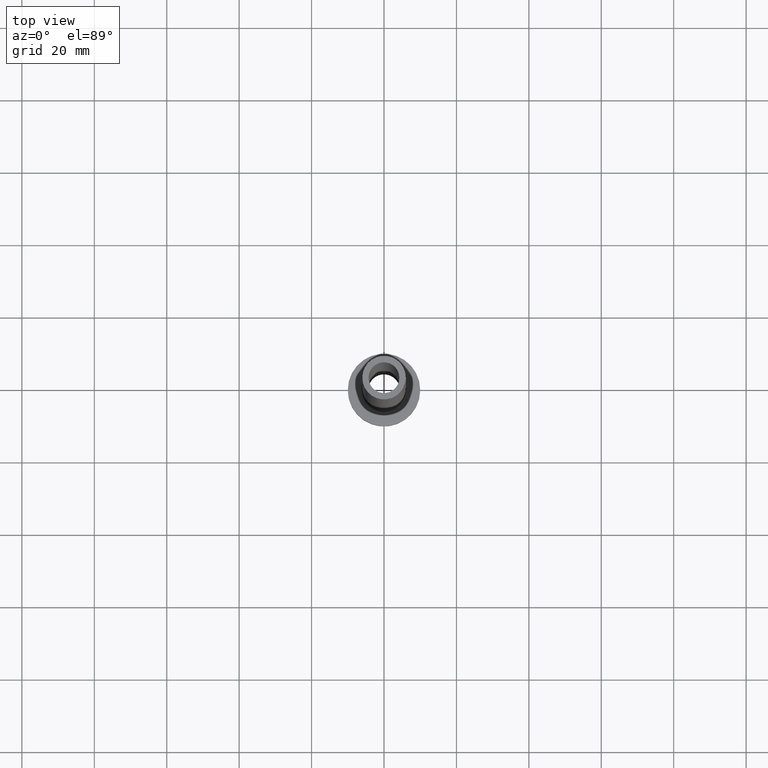
[diagram: clean part render]
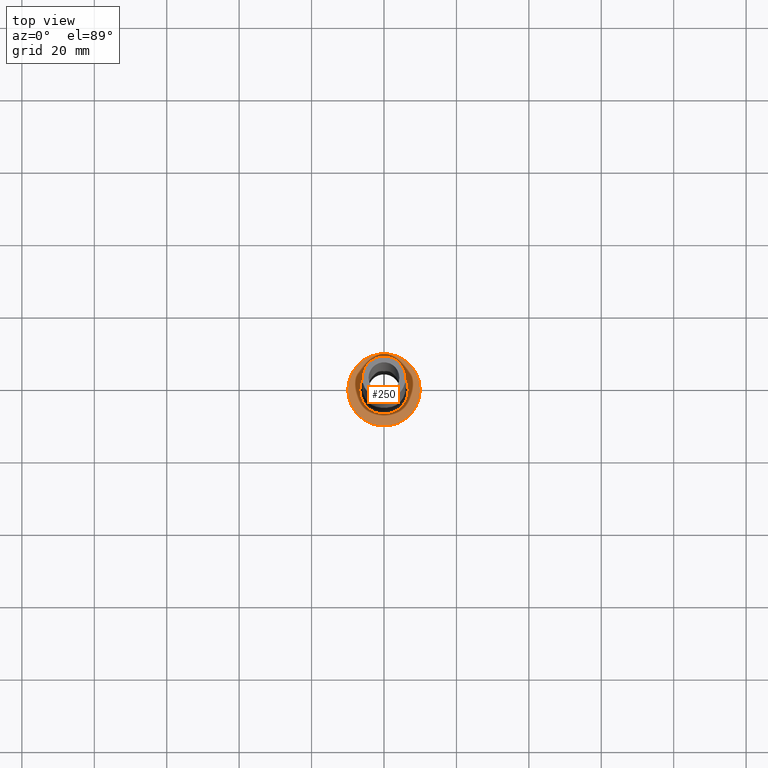
[diagram: same view with one face highlighted and labeled with its STEP entity id]
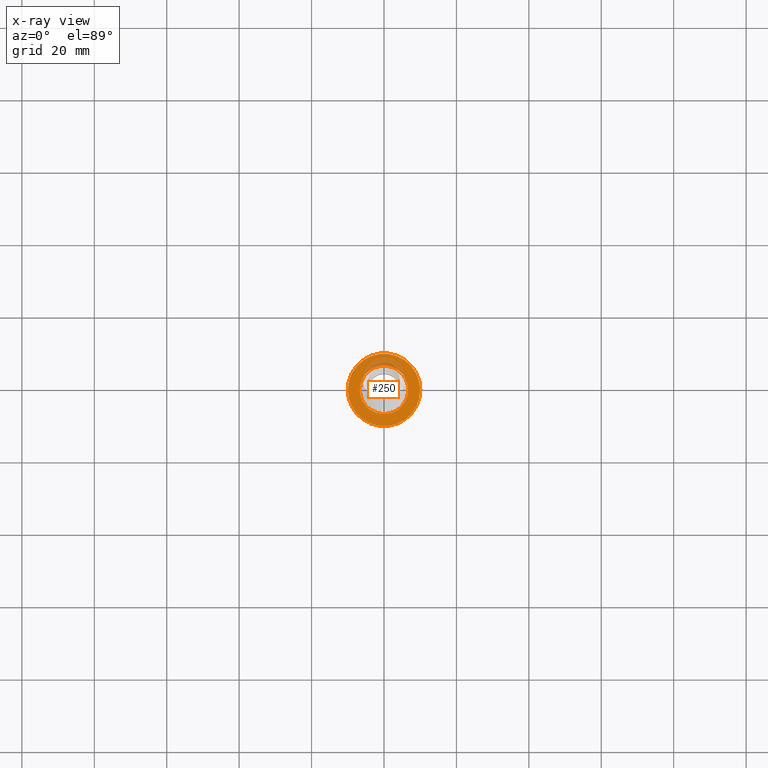
[diagram: x-ray of the same camera — body ghosted, the highlighted face saturated]
A machine part, top view. The second image highlights one B-rep face of the part: STEP entity #250.
The next image is the same camera in x-ray: the body ghosted, the highlighted face saturated — about 17% of this face is hidden behind the body in this view.
In plain terms, the highlighted planar face has unit normal (0, 0, 1).
Its self-contained STEP definition (entity closure, byte-faithful):
#10 = DIRECTION ( 'NONE',  ( 0.000000000000000000, 0.000000000000000000, 1.000000000000000000 ) ) ;
#14 = CARTESIAN_POINT ( 'NONE',  ( -6.700000000000001066, 8.205133554287267548E-16, 7.000000000000006217 ) ) ;
#19 = EDGE_LOOP ( 'NONE', ( #204, #50 ) ) ;
#49 = CARTESIAN_POINT ( 'NONE',  ( 6.700000000000001066, 0.000000000000000000, 7.000000000000006217 ) ) ;
#50 = ORIENTED_EDGE ( 'NONE', *, *, #355, .T. ) ;
#60 = DIRECTION ( 'NONE',  ( -0.000000000000000000, -0.000000000000000000, -1.000000000000000000 ) ) ;
#67 = VERTEX_POINT ( 'NONE', #49 ) ;
#72 = EDGE_CURVE ( 'NONE', #353, #129, #226, .T. ) ;
#89 = DIRECTION ( 'NONE',  ( 0.000000000000000000, 0.000000000000000000, 1.000000000000000000 ) ) ;
#91 = AXIS2_PLACEMENT_3D ( 'NONE', #371, #10, #187 ) ;
#111 = FACE_BOUND ( 'NONE', #236, .T. ) ;
#129 = VERTEX_POINT ( 'NONE', #251 ) ;
#139 = AXIS2_PLACEMENT_3D ( 'NONE', #196, #269, #381 ) ;
#150 = ORIENTED_EDGE ( 'NONE', *, *, #311, .T. ) ;
#161 = CARTESIAN_POINT ( 'NONE',  ( 0.000000000000000000, 0.000000000000000000, 7.000000000000000000 ) ) ;
#187 = DIRECTION ( 'NONE',  ( 1.000000000000000000, 0.000000000000000000, 0.000000000000000000 ) ) ;
#196 = CARTESIAN_POINT ( 'NONE',  ( 0.000000000000000000, 0.000000000000000000, 7.000000000000000000 ) ) ;
#200 = CARTESIAN_POINT ( 'NONE',  ( 0.000000000000000000, 0.000000000000000000, 7.000000000000000000 ) ) ;
#204 = ORIENTED_EDGE ( 'NONE', *, *, #72, .T. ) ;
#226 = CIRCLE ( 'NONE', #91, 10.00000000000000000 ) ;
#233 = DIRECTION ( 'NONE',  ( -0.000000000000000000, -0.000000000000000000, -1.000000000000000000 ) ) ;
#236 = EDGE_LOOP ( 'NONE', ( #339, #150 ) ) ;
#248 = FACE_OUTER_BOUND ( 'NONE', #19, .T. ) ;
#250 = ADVANCED_FACE ( 'NONE', ( #111, #248 ), #345, .T. ) ;
#251 = CARTESIAN_POINT ( 'NONE',  ( 10.00000000000000000, 1.224646799147353256E-15, 7.000000000000000000 ) ) ;
#263 = CARTESIAN_POINT ( 'NONE',  ( -10.00000000000000000, 0.000000000000000000, 7.000000000000000000 ) ) ;
#269 = DIRECTION ( 'NONE',  ( 0.000000000000000000, 0.000000000000000000, 1.000000000000000000 ) ) ;
#281 = EDGE_CURVE ( 'NONE', #67, #460, #336, .T. ) ;
#311 = EDGE_CURVE ( 'NONE', #460, #67, #459, .T. ) ;
#336 = CIRCLE ( 'NONE', #445, 6.700000000000001066 ) ;
#339 = ORIENTED_EDGE ( 'NONE', *, *, #281, .T. ) ;
#340 = CARTESIAN_POINT ( 'NONE',  ( 0.000000000000000000, 0.000000000000000000, 7.000000000000000000 ) ) ;
#345 = PLANE ( 'NONE',  #139 ) ;
#353 = VERTEX_POINT ( 'NONE', #263 ) ;
#355 = EDGE_CURVE ( 'NONE', #129, #353, #358, .T. ) ;
#358 = CIRCLE ( 'NONE', #430, 10.00000000000000000 ) ;
#366 = AXIS2_PLACEMENT_3D ( 'NONE', #340, #233, #453 ) ;
#371 = CARTESIAN_POINT ( 'NONE',  ( 0.000000000000000000, 0.000000000000000000, 7.000000000000000000 ) ) ;
#381 = DIRECTION ( 'NONE',  ( 1.000000000000000000, 0.000000000000000000, -0.000000000000000000 ) ) ;
#410 = DIRECTION ( 'NONE',  ( 1.000000000000000000, 0.000000000000000000, 0.000000000000000000 ) ) ;
#416 = DIRECTION ( 'NONE',  ( 1.000000000000000000, 0.000000000000000000, 0.000000000000000000 ) ) ;
#430 = AXIS2_PLACEMENT_3D ( 'NONE', #161, #89, #416 ) ;
#445 = AXIS2_PLACEMENT_3D ( 'NONE', #200, #60, #410 ) ;
#453 = DIRECTION ( 'NONE',  ( 1.000000000000000000, 0.000000000000000000, 0.000000000000000000 ) ) ;
#459 = CIRCLE ( 'NONE', #366, 6.700000000000001066 ) ;
#460 = VERTEX_POINT ( 'NONE', #14 ) ;